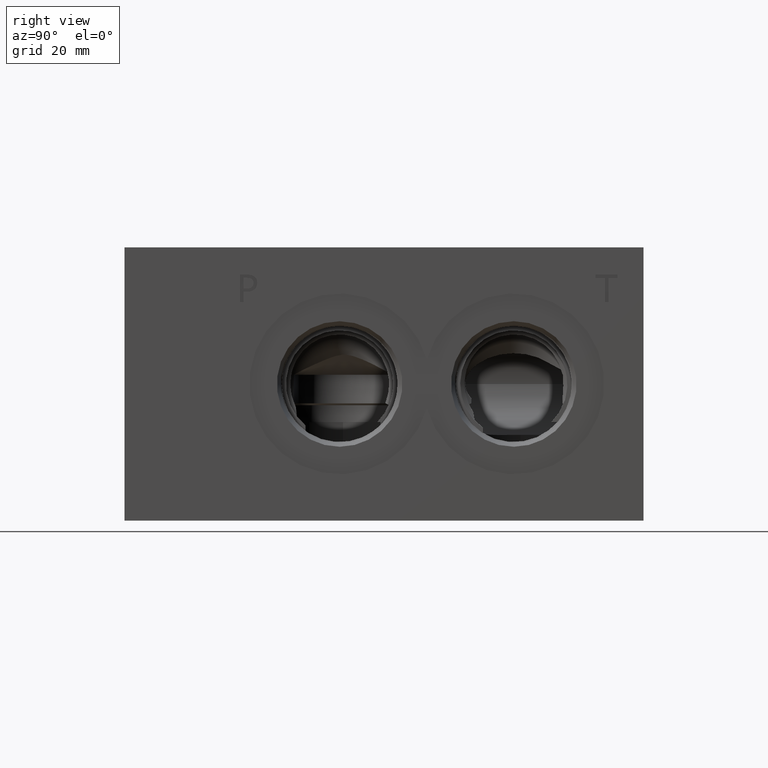
[diagram: clean part render]
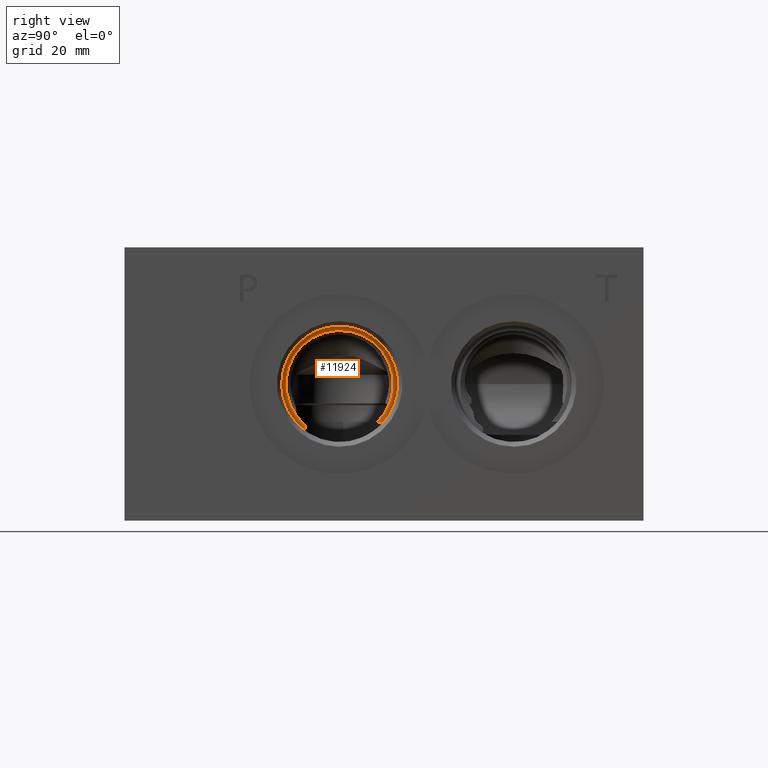
[diagram: same view with one face highlighted and labeled with its STEP entity id]
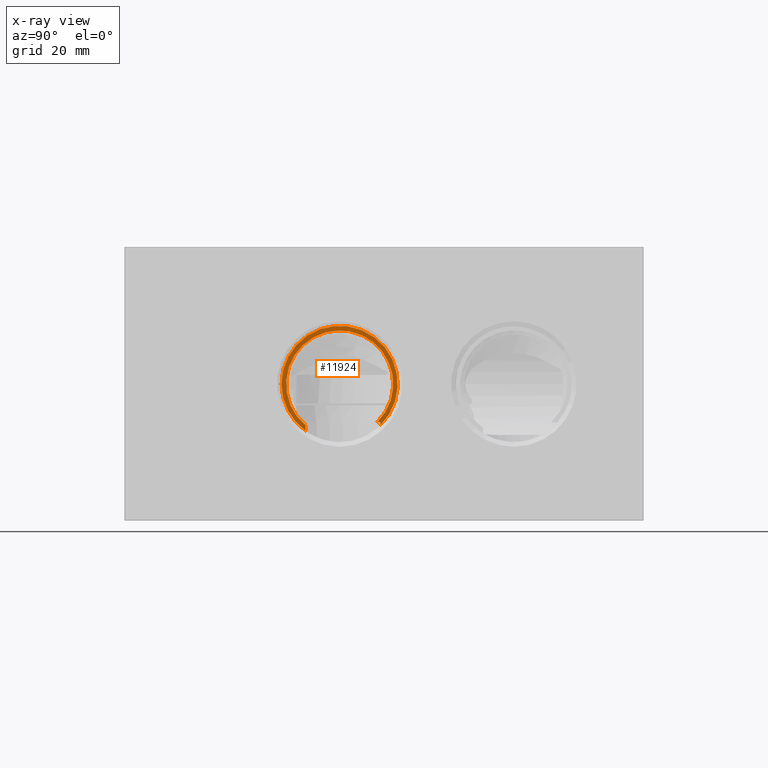
[diagram: x-ray of the same camera — body ghosted, the highlighted face saturated]
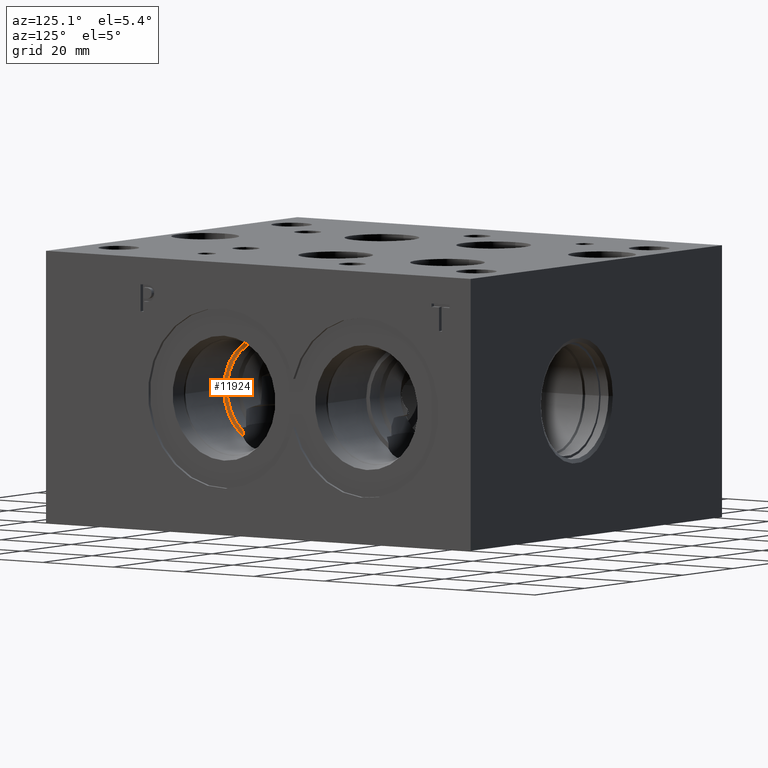
[diagram: same view with one face highlighted and labeled with its STEP entity id]
A machine part, right view. The second image highlights one B-rep face of the part: STEP entity #11924.
The next image is the same camera in x-ray: the body ghosted, the highlighted face saturated — about 0% of this face is hidden behind the body in this view.
A second angle (auxiliary view) of the same face is appended — the face is thin or edge-on in the first view.
In plain terms, the highlighted planar face has unit normal (1, 0, 0).
Its self-contained STEP definition (entity closure, byte-faithful):
#198=CIRCLE('',#12473,12.4587);
#200=CIRCLE('',#12476,13.5001);
#201=CIRCLE('',#12477,13.5001);
#1418=FACE_OUTER_BOUND('',#2079,.T.);
#2079=EDGE_LOOP('',(#9997,#9998,#9999,#10000,#10001,#10002));
#3250=LINE('',#20140,#4360);
#3252=LINE('',#20151,#4362);
#3253=LINE('',#20169,#4363);
#4360=VECTOR('',#14624,10.);
#4362=VECTOR('',#14630,10.);
#4363=VECTOR('',#14631,10.);
#5380=VERTEX_POINT('',#20130);
#5384=VERTEX_POINT('',#20138);
#5386=VERTEX_POINT('',#20145);
#5387=VERTEX_POINT('',#20150);
#5388=VERTEX_POINT('',#20152);
#5391=VERTEX_POINT('',#20191);
#6977=EDGE_CURVE('',#5380,#5384,#3250,.T.);
#6981=EDGE_CURVE('',#5387,#5386,#3252,.T.);
#6983=EDGE_CURVE('',#5384,#5388,#3253,.T.);
#6986=EDGE_CURVE('',#5380,#5386,#198,.T.);
#6989=EDGE_CURVE('',#5388,#5391,#200,.T.);
#6990=EDGE_CURVE('',#5391,#5387,#201,.T.);
#9997=ORIENTED_EDGE('',*,*,#6977,.T.);
#9998=ORIENTED_EDGE('',*,*,#6983,.T.);
#9999=ORIENTED_EDGE('',*,*,#6989,.T.);
#10000=ORIENTED_EDGE('',*,*,#6990,.T.);
#10001=ORIENTED_EDGE('',*,*,#6981,.T.);
#10002=ORIENTED_EDGE('',*,*,#6986,.F.);
#10962=PLANE('',#12479);
#11924=ADVANCED_FACE('',(#1418),#10962,.T.);
#12473=AXIS2_PLACEMENT_3D('',#20186,#14636,#14637);
#12476=AXIS2_PLACEMENT_3D('',#20193,#14643,#14644);
#12477=AXIS2_PLACEMENT_3D('',#20194,#14645,#14646);
#12479=AXIS2_PLACEMENT_3D('',#20196,#14649,#14650);
#14624=DIRECTION('',(0.,1.,0.));
#14630=DIRECTION('',(0.,0.,1.));
#14631=DIRECTION('',(0.,0.,-1.));
#14636=DIRECTION('center_axis',(1.,0.,0.));
#14637=DIRECTION('ref_axis',(0.,1.,0.));
#14643=DIRECTION('center_axis',(1.,0.,0.));
#14644=DIRECTION('ref_axis',(0.,1.,0.));
#14645=DIRECTION('center_axis',(1.,0.,0.));
#14646=DIRECTION('ref_axis',(0.,1.,0.));
#14649=DIRECTION('center_axis',(1.,0.,0.));
#14650=DIRECTION('ref_axis',(0.,1.,0.));
#20130=CARTESIAN_POINT('',(81.7626,58.7411225376349,22.86));
#20138=CARTESIAN_POINT('',(81.7626,59.5045638167573,22.86));
#20140=CARTESIAN_POINT('',(81.7626,50.4063,22.86));
#20145=CARTESIAN_POINT('',(81.7626,42.0954361832427,22.1303470546683));
#20150=CARTESIAN_POINT('',(81.7626,42.0954361832427,20.815137535907));
#20151=CARTESIAN_POINT('',(81.7626,42.0954361832427,11.43));
#20152=CARTESIAN_POINT('',(81.7626,59.5045638167573,22.1502436014568));
#20169=CARTESIAN_POINT('',(81.7626,59.5045638167573,11.43));
#20186=CARTESIAN_POINT('Origin',(81.7626,50.0126,31.75));
#20191=CARTESIAN_POINT('',(81.7626,36.5125,31.75));
#20193=CARTESIAN_POINT('Origin',(81.7626,50.0126,31.75));
#20194=CARTESIAN_POINT('Origin',(81.7626,50.0126,31.75));
#20196=CARTESIAN_POINT('Origin',(81.7626,50.0126,31.75));